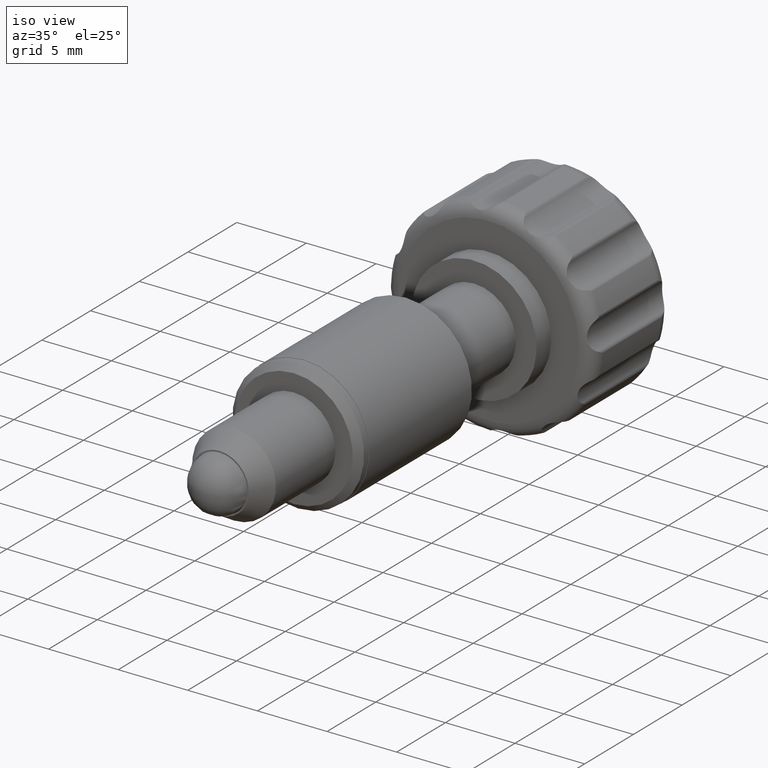
[diagram: clean part render]
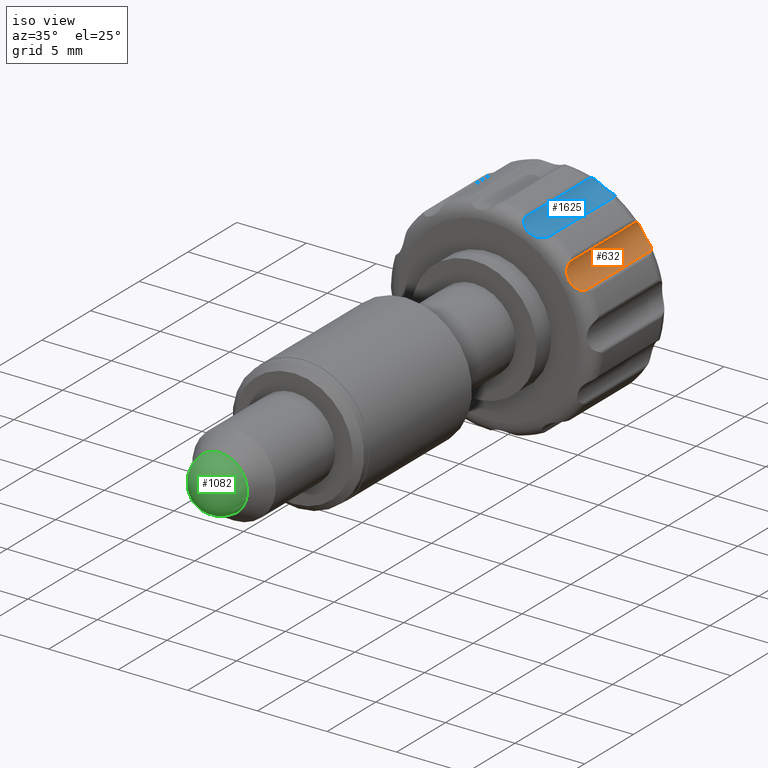
[diagram: same view with three faces highlighted in distinct colors, each labeled with its STEP entity id]
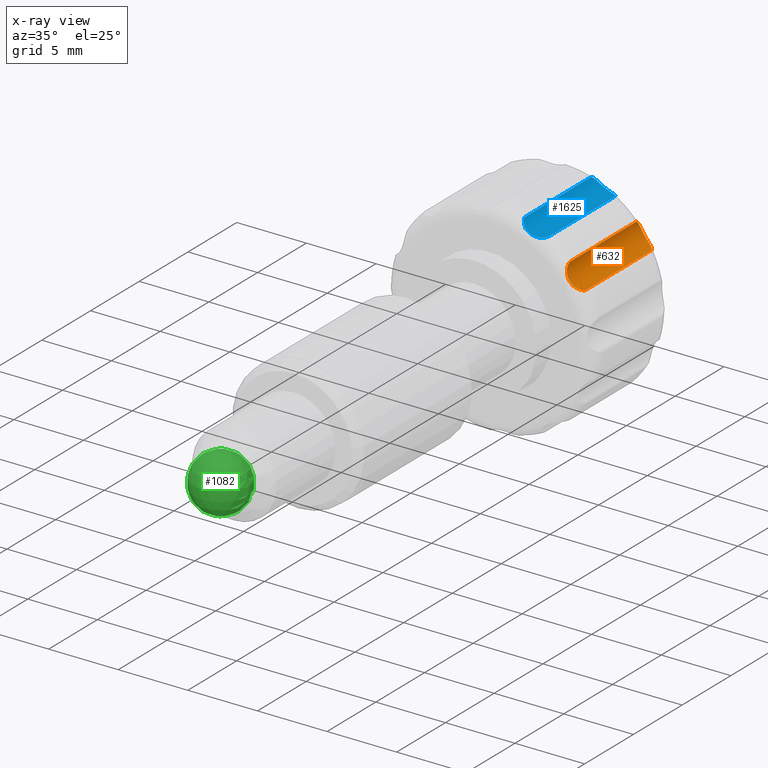
[diagram: x-ray of the same camera — body ghosted, the three highlighted faces saturated]
A machine part, iso view with three faces highlighted in distinct colors.
The next image is the same camera in x-ray (body ghosted, the three faces saturated) — at least one of them is partly hidden behind the body in this view.
Their STEP definitions:

[orange] entity #632 — the highlighted cylindrical surface (edge-blend (fillet) strip) has radius 1.5 mm, axis along (-0, -1, -0).
#7 = FACE_OUTER_BOUND ( 'NONE', #270, .T. ) ;
#38 = CARTESIAN_POINT ( 'NONE',  ( 6.262413578394340874, 8.301774633971421125, 3.592011420852439407 ) ) ;
#59 = CARTESIAN_POINT ( 'NONE',  ( 5.498648544441020469, 15.84309984348018752, 4.413503433307501389 ) ) ;
#88 = CARTESIAN_POINT ( 'NONE',  ( 6.406717666651647214, 15.58442692549904329, 3.531709327202635862 ) ) ;
#206 = CARTESIAN_POINT ( 'NONE',  ( 6.523885244391032678, 15.43210945243504284, 3.497225755466382147 ) ) ;
#233 = CARTESIAN_POINT ( 'NONE',  ( 6.184019650301620707, 8.257441710831013637, 3.631702608060439541 ) ) ;
#245 = ORIENTED_EDGE ( 'NONE', *, *, #559, .T. ) ;
#270 = EDGE_LOOP ( 'NONE', ( #245, #2660, #1194, #426 ) ) ;
#271 = CARTESIAN_POINT ( 'NONE',  ( 6.523885244391032678, 15.43210945243504284, 3.497225755466382147 ) ) ;
#282 = CARTESIAN_POINT ( 'NONE',  ( 6.523885244389843407, 16.00166463725902233, 3.497225755466646380 ) ) ;
#426 = ORIENTED_EDGE ( 'NONE', *, *, #1195, .T. ) ;
#438 = CARTESIAN_POINT ( 'NONE',  ( 5.805129635471069527, 15.86677829977084819, 3.916112033685618776 ) ) ;
#468 = CARTESIAN_POINT ( 'NONE',  ( 5.579665743674244283, 15.86660133686063467, 4.231676364304541416 ) ) ;
#474 = CARTESIAN_POINT ( 'NONE',  ( 5.433813057070214114, 8.257164175734823530, 4.679832940919690820 ) ) ;
#533 = B_SPLINE_CURVE_WITH_KNOTS ( 'NONE', 3,
 ( #271, #2483, #88, #2497, #1878, #685, #438, #468, #59, #697, #1502, #870, #669, #1512 ),
 .UNSPECIFIED., .F., .F.,
 ( 4, 2, 2, 2, 2, 2, 4 ),
 ( 0.0004549188434785436403, 0.0007454011220209986934, 0.001035883400563450494, 0.001616847957648355179, 0.002197812514733259864, 0.002488294793275710147, 0.002778777071818161297 ),
 .UNSPECIFIED. ) ;
#559 = EDGE_CURVE ( 'NONE', #747, #2090, #1407, .T. ) ;
#588 = CARTESIAN_POINT ( 'NONE',  ( 6.523885244389840743, 8.569219822081096893, 3.497225755466645492 ) ) ;
#632 = ADVANCED_FACE ( 'NONE', ( #7 ), #1225, .F. ) ;
#669 = CARTESIAN_POINT ( 'NONE',  ( 5.412632444260079723, 15.51386028369656422, 4.991908670438619744 ) ) ;
#685 = CARTESIAN_POINT ( 'NONE',  ( 5.951004601539140459, 15.84355434146799269, 3.780317251241123166 ) ) ;
#688 = LINE ( 'NONE', #2312, #1852 ) ;
#697 = CARTESIAN_POINT ( 'NONE',  ( 5.433742480283370035, 15.74388756368708187, 4.680363824177923071 ) ) ;
#702 = CARTESIAN_POINT ( 'NONE',  ( 6.407128615288213425, 8.417310385730846889, 3.531567136639497839 ) ) ;
#718 = VECTOR ( 'NONE', #2511, 1000.000000000000000 ) ;
#747 = VERTEX_POINT ( 'NONE', #855 ) ;
#825 = CARTESIAN_POINT ( 'NONE',  ( 6.912886668439832683, 16.00166463725889798, 4.945907187696372276 ) ) ;
#855 = CARTESIAN_POINT ( 'NONE',  ( 5.416192940141673517, 8.569219822083022464, 5.045445540469236434 ) ) ;
#870 = CARTESIAN_POINT ( 'NONE',  ( 5.411000304613261314, 15.58401888878724684, 4.923854103942589155 ) ) ;
#919 = CARTESIAN_POINT ( 'NONE',  ( 6.472065778533297120, 8.487468990821522397, 3.511140371588027609 ) ) ;
#1041 = DIRECTION ( 'NONE',  ( -0.1636311210927797744, 0.000000000000000000, -0.9865215943961489486 ) ) ;
#1094 = CARTESIAN_POINT ( 'NONE',  ( 5.499169562406494904, 8.157774933050109922, 4.411846372152300688 ) ) ;
#1110 = CARTESIAN_POINT ( 'NONE',  ( 5.952404715281669922, 8.158229431037906210, 3.779289149640848500 ) ) ;
#1124 = CARTESIAN_POINT ( 'NONE',  ( 6.523885244389840743, 8.569219822081096893, 3.497225755466645492 ) ) ;
#1194 = ORIENTED_EDGE ( 'NONE', *, *, #2247, .T. ) ;
#1195 = EDGE_CURVE ( 'NONE', #1838, #747, #688, .T. ) ;
#1225 = CYLINDRICAL_SURFACE ( 'NONE', #2560, 1.500000000000019762 ) ;
#1299 = LINE ( 'NONE', #282, #718 ) ;
#1305 = CARTESIAN_POINT ( 'NONE',  ( 5.806471043692624789, 8.134727937657457275, 3.914670954512609047 ) ) ;
#1317 = DIRECTION ( 'NONE',  ( -3.260545687903909196E-16, -1.000000000000000000, -3.253773888833970700E-16 ) ) ;
#1407 = B_SPLINE_CURVE_WITH_KNOTS ( 'NONE', 3,
 ( #1883, #1680, #1495, #2303, #474, #1094, #1897, #1305, #1110, #233, #38, #702, #919, #1124 ),
 .UNSPECIFIED., .F., .F.,
 ( 4, 2, 2, 2, 2, 2, 4 ),
 ( 0.0004549188434784493147, 0.0007454011220208663123, 0.001035883400563283310, 0.001616847957648119474, 0.002197812514732955420, 0.002488294793275373611, 0.002778777071817791801 ),
 .UNSPECIFIED. ) ;
#1495 = CARTESIAN_POINT ( 'NONE',  ( 5.411002205542048138, 8.416902349019041552, 4.923419255319965160 ) ) ;
#1502 = CARTESIAN_POINT ( 'NONE',  ( 5.421486346727183658, 15.69955464054667615, 4.767374085032856534 ) ) ;
#1512 = CARTESIAN_POINT ( 'NONE',  ( 5.416192940141586476, 15.43210945243696841, 5.045445540467915713 ) ) ;
#1632 = DIRECTION ( 'NONE',  ( -3.260545687903909196E-16, -1.000000000000000000, -3.253773888833970700E-16 ) ) ;
#1680 = CARTESIAN_POINT ( 'NONE',  ( 5.412658101763086371, 8.488058100390682981, 4.992294465689533389 ) ) ;
#1827 = CARTESIAN_POINT ( 'NONE',  ( 5.416192940141586476, 15.43210945243696841, 5.045445540467915713 ) ) ;
#1838 = VERTEX_POINT ( 'NONE', #1827 ) ;
#1852 = VECTOR ( 'NONE', #1317, 1000.000000000000000 ) ;
#1878 = CARTESIAN_POINT ( 'NONE',  ( 6.183539981799719421, 15.74416509878327375, 3.631940801773652971 ) ) ;
#1883 = CARTESIAN_POINT ( 'NONE',  ( 5.416192940141673517, 8.569219822083022464, 5.045445540469236434 ) ) ;
#1897 = CARTESIAN_POINT ( 'NONE',  ( 5.580596577296601524, 8.134550974747240204, 4.229941534639359624 ) ) ;
#2090 = VERTEX_POINT ( 'NONE', #588 ) ;
#2181 = EDGE_CURVE ( 'NONE', #2090, #2437, #1299, .T. ) ;
#2247 = EDGE_CURVE ( 'NONE', #2437, #1838, #533, .T. ) ;
#2303 = CARTESIAN_POINT ( 'NONE',  ( 5.421554302147729487, 8.301415567837878484, 4.766769195506283197 ) ) ;
#2312 = CARTESIAN_POINT ( 'NONE',  ( 5.416192940141585588, 16.00166463725889798, 5.045445540467908607 ) ) ;
#2437 = VERTEX_POINT ( 'NONE', #206 ) ;
#2483 = CARTESIAN_POINT ( 'NONE',  ( 6.472439197894988894, 15.51327117412741785, 3.511040100638046280 ) ) ;
#2497 = CARTESIAN_POINT ( 'NONE',  ( 6.261863020369627719, 15.69991370668021347, 3.592271026591894234 ) ) ;
#2511 = DIRECTION ( 'NONE',  ( 3.260545687903909196E-16, 1.000000000000000000, 3.253773888833970700E-16 ) ) ;
#2560 = AXIS2_PLACEMENT_3D ( 'NONE', #825, #1632, #1041 ) ;
#2660 = ORIENTED_EDGE ( 'NONE', *, *, #2181, .T. ) ;

[blue] entity #1625 — the highlighted cylindrical surface (edge-blend (fillet) strip) has radius 1.5 mm, axis along (-0, -1, -0).
#45 = VERTEX_POINT ( 'NONE', #833 ) ;
#56 = CARTESIAN_POINT ( 'NONE',  ( 2.167837907725989499, 8.569219822082983384, 7.077580481528144674 ) ) ;
#60 = CYLINDRICAL_SURFACE ( 'NONE', #972, 1.500000000000019540 ) ;
#197 = CARTESIAN_POINT ( 'NONE',  ( 2.167837907726568591, 15.43210945243693466, 7.077580481526962508 ) ) ;
#239 = CARTESIAN_POINT ( 'NONE',  ( 3.071215952920284487, 8.134727937657508789, 6.293440015911375696 ) ) ;
#373 = CARTESIAN_POINT ( 'NONE',  ( 2.555217609314616389, 15.84309984348014311, 6.571530365154686137 ) ) ;
#380 = ORIENTED_EDGE ( 'NONE', *, *, #1805, .T. ) ;
#384 = CARTESIAN_POINT ( 'NONE',  ( 2.191522862857908649, 15.51386028369649139, 7.029435944101686928 ) ) ;
#521 = CARTESIAN_POINT ( 'NONE',  ( 3.265289122219753537, 8.158229431037947066, 6.249162769476768631 ) ) ;
#543 = VECTOR ( 'NONE', #1236, 1000.000000000000000 ) ;
#591 = VECTOR ( 'NONE', #808, 1000.000000000000000 ) ;
#645 = VERTEX_POINT ( 'NONE', #1383 ) ;
#682 = CARTESIAN_POINT ( 'NONE',  ( 3.539666810633105953, 8.257441710831036730, 6.237156542721396413 ) ) ;
#730 = CARTESIAN_POINT ( 'NONE',  ( 2.311819155903742207, 8.301415567837937104, 6.838920368359423740 ) ) ;
#757 = EDGE_CURVE ( 'NONE', #1346, #45, #1773, .T. ) ;
#808 = DIRECTION ( 'NONE',  ( 3.260545687903909196E-16, 1.000000000000000000, 3.253773888833970700E-16 ) ) ;
#813 = CARTESIAN_POINT ( 'NONE',  ( 2.365577113459213621, 15.74388756368701259, 6.770185210833492562 ) ) ;
#833 = CARTESIAN_POINT ( 'NONE',  ( 3.901237475282631539, 8.569219822081038274, 6.290628969198347242 ) ) ;
#871 = CARTESIAN_POINT ( 'NONE',  ( 3.513781874503589364, 16.00166463725889798, 7.739724603525071522 ) ) ;
#972 = AXIS2_PLACEMENT_3D ( 'NONE', #871, #2512, #2299 ) ;
#985 = ORIENTED_EDGE ( 'NONE', *, *, #757, .T. ) ;
#1034 = CARTESIAN_POINT ( 'NONE',  ( 3.626796937362572582, 15.69991370668012998, 6.241929476492244611 ) ) ;
#1236 = DIRECTION ( 'NONE',  ( -3.260545687903909196E-16, -1.000000000000000000, -3.253773888833970700E-16 ) ) ;
#1297 = CARTESIAN_POINT ( 'NONE',  ( 2.224355742273192327, 8.416902349019107277, 6.969307251359575517 ) ) ;
#1346 = VERTEX_POINT ( 'NONE', #2069 ) ;
#1383 = CARTESIAN_POINT ( 'NONE',  ( 3.901237475284018430, 15.43210945243498422, 6.290628969198650111 ) ) ;
#1405 = CARTESIAN_POINT ( 'NONE',  ( 3.263562537350507498, 15.84355434146793229, 6.249353074708996481 ) ) ;
#1417 = CARTESIAN_POINT ( 'NONE',  ( 3.069333719737121324, 15.86677829977079668, 6.294017322973278539 ) ) ;
#1431 = CARTESIAN_POINT ( 'NONE',  ( 2.224136671709247892, 15.58401888878716335, 6.969682890849193235 ) ) ;
#1470 = CARTESIAN_POINT ( 'NONE',  ( 3.901237475282631539, 8.569219822081038274, 6.290628969198347242 ) ) ;
#1571 = CARTESIAN_POINT ( 'NONE',  ( 2.167837907726568591, 15.43210945243693466, 7.077580481526962508 ) ) ;
#1622 = CARTESIAN_POINT ( 'NONE',  ( 3.539132308668560878, 15.74416509878319381, 6.237122990277111256 ) ) ;
#1625 = ADVANCED_FACE ( 'NONE', ( #2079 ), #60, .F. ) ;
#1630 = LINE ( 'NONE', #1779, #591 ) ;
#1661 = CARTESIAN_POINT ( 'NONE',  ( 3.782952577833989860, 8.417310385730834454, 6.261991163144197792 ) ) ;
#1685 = CARTESIAN_POINT ( 'NONE',  ( 3.627403537467813521, 8.301774633971422901, 6.241979930339256910 ) ) ;
#1773 = B_SPLINE_CURVE_WITH_KNOTS ( 'NONE', 3,
 ( #56, #1903, #1297, #730, #2507, #1875, #2062, #239, #521, #682, #1685, #1661, #2294, #1470 ),
 .UNSPECIFIED., .F., .F.,
 ( 4, 2, 2, 2, 2, 2, 4 ),
 ( 0.0004549188434784535431, 0.0007454011220208540608, 0.001035883400563254470, 0.001616847957648055289, 0.002197812514732856107, 0.002488294793275256083, 0.002778777071817655625 ),
 .UNSPECIFIED. ) ;
#1779 = CARTESIAN_POINT ( 'NONE',  ( 3.901237475282761658, 16.00166463725889798, 6.290628969198305498 ) ) ;
#1805 = EDGE_CURVE ( 'NONE', #2311, #1346, #1975, .T. ) ;
#1875 = CARTESIAN_POINT ( 'NONE',  ( 2.556497354686142920, 8.157774933050164989, 6.570355817081390271 ) ) ;
#1903 = CARTESIAN_POINT ( 'NONE',  ( 2.191352185281870923, 8.488058100390723837, 7.029782881341109402 ) ) ;
#1938 = EDGE_LOOP ( 'NONE', ( #985, #2499, #2222, #380 ) ) ;
#1975 = LINE ( 'NONE', #2249, #543 ) ;
#2025 = CARTESIAN_POINT ( 'NONE',  ( 3.849776719508260392, 15.51327117412731127, 6.276869519805948094 ) ) ;
#2062 = CARTESIAN_POINT ( 'NONE',  ( 2.717967636891710281, 8.134550974747298824, 6.453535114169005382 ) ) ;
#2069 = CARTESIAN_POINT ( 'NONE',  ( 2.167837907725989499, 8.569219822082983384, 7.077580481528144674 ) ) ;
#2079 = FACE_OUTER_BOUND ( 'NONE', #1938, .T. ) ;
#2093 = EDGE_CURVE ( 'NONE', #645, #2311, #2217, .T. ) ;
#2199 = CARTESIAN_POINT ( 'NONE',  ( 3.901237475284018430, 15.43210945243498422, 6.290628969198650111 ) ) ;
#2211 = CARTESIAN_POINT ( 'NONE',  ( 2.311457860019933364, 15.69955464054661043, 6.839410240345654479 ) ) ;
#2217 = B_SPLINE_CURVE_WITH_KNOTS ( 'NONE', 3,
 ( #2199, #2025, #2421, #1034, #1622, #1405, #1417, #2238, #373, #813, #2211, #1431, #384, #197 ),
 .UNSPECIFIED., .F., .F.,
 ( 4, 2, 2, 2, 2, 2, 4 ),
 ( 0.0004549188434784788050, 0.0007454011220209224740, 0.001035883400563362890, 0.001616847957648240471, 0.002197812514733118051, 0.002488294793275555757, 0.002778777071817993896 ),
 .UNSPECIFIED. ) ;
#2222 = ORIENTED_EDGE ( 'NONE', *, *, #2093, .T. ) ;
#2238 = CARTESIAN_POINT ( 'NONE',  ( 2.716294096495513344, 15.86660133686058138, 6.454572103919083759 ) ) ;
#2249 = CARTESIAN_POINT ( 'NONE',  ( 2.167837907726568591, 16.00166463725889798, 7.077580481526960732 ) ) ;
#2294 = CARTESIAN_POINT ( 'NONE',  ( 3.849403193379655086, 8.487468990821477988, 6.276769647315021849 ) ) ;
#2299 = DIRECTION ( 'NONE',  ( -0.1636311210927795246, 0.000000000000000000, -0.9865215943961491707 ) ) ;
#2311 = VERTEX_POINT ( 'NONE', #1571 ) ;
#2421 = CARTESIAN_POINT ( 'NONE',  ( 3.782525590593620368, 15.58442692549895092, 6.261908829465792969 ) ) ;
#2465 = EDGE_CURVE ( 'NONE', #45, #645, #1630, .T. ) ;
#2499 = ORIENTED_EDGE ( 'NONE', *, *, #2465, .T. ) ;
#2507 = CARTESIAN_POINT ( 'NONE',  ( 2.365903676378651621, 8.257164175734894584, 6.769760740838840718 ) ) ;
#2512 = DIRECTION ( 'NONE',  ( -3.260545687903909196E-16, -1.000000000000000000, -3.253773888833970700E-16 ) ) ;

[green] entity #1082 — the highlighted spherical surface has radius 2 mm.
#802 = SPHERICAL_SURFACE ( 'NONE', #2375, 2.000000000000000000 ) ;
#1082 = ADVANCED_FACE ( 'NONE', ( ), #802, .T. ) ;
#1435 = DIRECTION ( 'NONE',  ( 0.000000000000000000, 0.000000000000000000, -1.000000000000000000 ) ) ;
#1614 = CARTESIAN_POINT ( 'NONE',  ( -9.210838550141878078E-15, -19.49975043916037976, -3.315466113419331441E-14 ) ) ;
#1636 = DIRECTION ( 'NONE',  ( 1.000000000000000000, 0.000000000000000000, 0.000000000000000000 ) ) ;
#2375 = AXIS2_PLACEMENT_3D ( 'NONE', #1614, #1435, #1636 ) ;